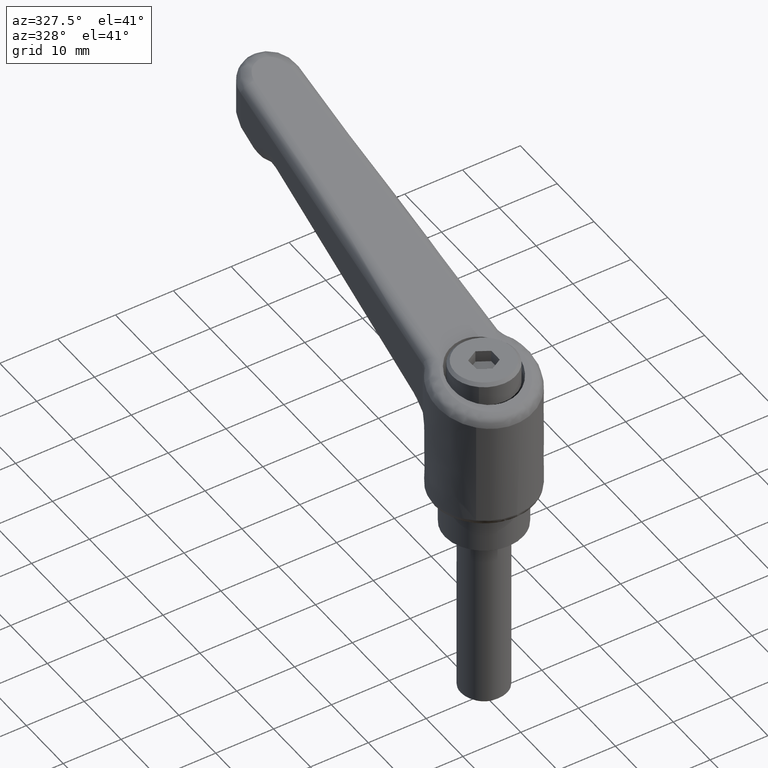
[diagram: clean part render]
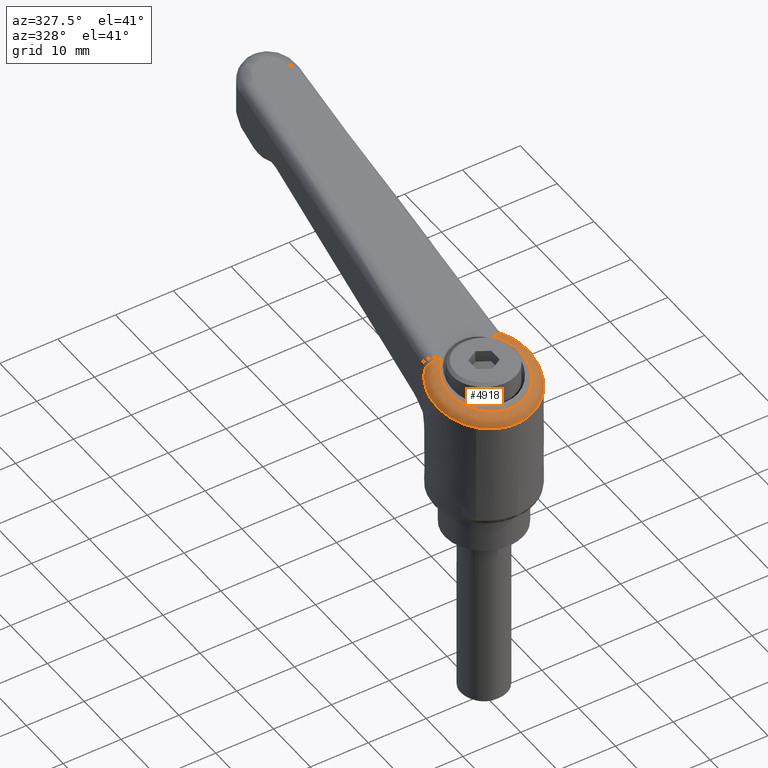
[diagram: same view with one face highlighted and labeled with its STEP entity id]
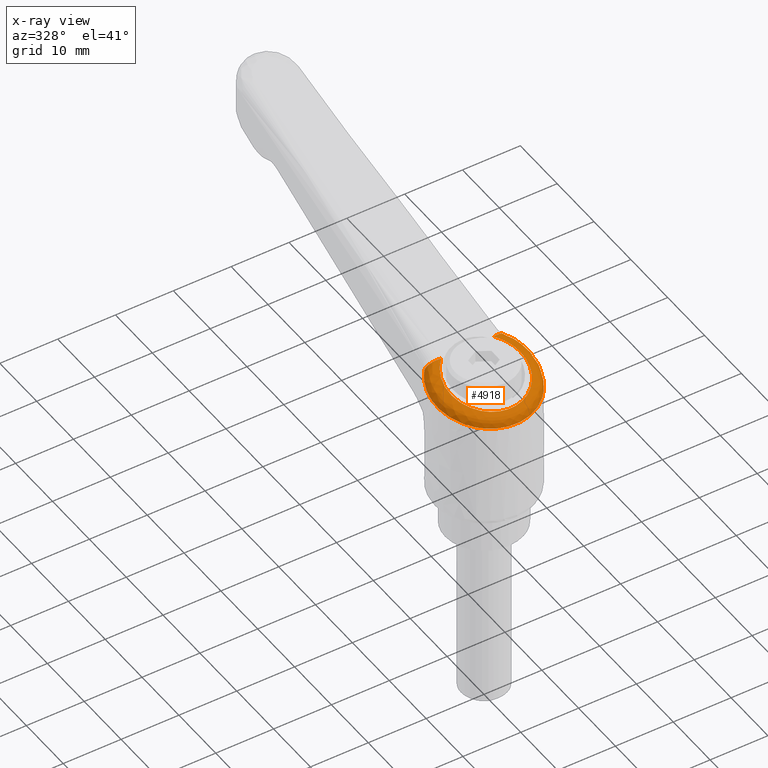
[diagram: x-ray of the same camera — body ghosted, the highlighted face saturated]
A machine part, auxiliary view. The second image highlights one B-rep face of the part: STEP entity #4918.
The next image is the same camera in x-ray: the body ghosted, the highlighted face saturated — about 0% of this face is hidden behind the body in this view.
In plain terms, the highlighted face is a freeform B-spline surface patch.
Its self-contained STEP definition (entity closure, byte-faithful):
#2028=CARTESIAN_POINT('',(-6.708743602364807,5.617406810773925,25.476228958721020));
#2029=VERTEX_POINT('',#2028);
#2030=CARTESIAN_POINT('',(5.378522906579990,6.901738284185690,27.945424589920599));
#2031=VERTEX_POINT('',#2030);
#2032=CARTESIAN_POINT('',(-6.708743602364807,5.617406810773926,25.476228958721020));
#2033=CARTESIAN_POINT('',(-6.576226125331398,5.775669476486011,25.503299725736429));
#2034=CARTESIAN_POINT('',(-6.436393221341032,5.927507258559474,25.531864893499829));
#2035=CARTESIAN_POINT('',(-0.977537447306346,11.855014517118940,26.647003938257686));
#2036=CARTESIAN_POINT('',(5.378522906579985,6.901738284185689,27.945424589920599));
#2044=(BOUNDED_CURVE()B_SPLINE_CURVE(2,(#2032,#2033,#2034,#2035,#2036),.UNSPECIFIED.,.F.,.U.)B_SPLINE_CURVE_WITH_KNOTS((3,2,3),(0.655164718706690,0.666666666666667,1.0),.UNSPECIFIED.)CURVE()GEOMETRIC_REPRESENTATION_ITEM()RATIONAL_B_SPLINE_CURVE((0.982382114092281,0.990876233793834,1.0,0.735587796724693,1.0))REPRESENTATION_ITEM(''));
#2045=EDGE_CURVE('',#2029,#2031,#2044,.T.);
#2071=CARTESIAN_POINT('',(5.378522906579990,-6.901738284185690,27.945424589920599));
#2072=VERTEX_POINT('',#2071);
#2078=CARTESIAN_POINT('',(-6.354468670888410,-6.015249613301948,25.548607935730661));
#2079=VERTEX_POINT('',#2078);
#2080=CARTESIAN_POINT('',(5.378522906579990,-6.901738284185690,27.945424589920599));
#2081=CARTESIAN_POINT('',(-0.890588192643558,-11.787254336989223,26.664769723286891));
#2082=CARTESIAN_POINT('',(-6.354468670888410,-6.015249613301948,25.548607935730665));
#2090=(BOUNDED_CURVE()B_SPLINE_CURVE(2,(#2080,#2081,#2082),.UNSPECIFIED.,.F.,.U.)B_SPLINE_CURVE_WITH_KNOTS((3,3),(0.0,0.329966926407927),.UNSPECIFIED.)CURVE()GEOMETRIC_REPRESENTATION_ITEM()RATIONAL_B_SPLINE_CURVE((1.0,0.738258153941497,0.994713222620560))REPRESENTATION_ITEM(''));
#2091=EDGE_CURVE('',#2072,#2079,#2090,.T.);
#2183=CARTESIAN_POINT('',(-6.354468670888410,-6.015249613301948,25.548607935730665));
#2184=CARTESIAN_POINT('',(-6.395732246608587,-5.971659063522899,25.540178553672135));
#2185=CARTESIAN_POINT('',(-6.436393919796870,-5.927506520684485,25.531872128355801));
#2186=CARTESIAN_POINT('',(-11.642315945486645,-0.274647766240932,24.468398859343647));
#2187=CARTESIAN_POINT('',(-6.708743602364807,5.617406810773925,25.476228958721023));
#2195=(BOUNDED_CURVE()B_SPLINE_CURVE(2,(#2183,#2184,#2185,#2186,#2187),.UNSPECIFIED.,.F.,.U.)B_SPLINE_CURVE_WITH_KNOTS((3,2,3),(0.329966926407927,0.333333333333333,0.655164718706690),.UNSPECIFIED.)CURVE()GEOMETRIC_REPRESENTATION_ITEM()RATIONAL_B_SPLINE_CURVE((0.994713222620560,0.997329642783196,1.0,0.744711562930859,0.982382114092282))REPRESENTATION_ITEM(''));
#2196=EDGE_CURVE('',#2079,#2029,#2195,.T.);
#4233=CARTESIAN_POINT('',(5.355297838498480,6.890936063726871,28.249615104373351));
#4234=VERTEX_POINT('',#4233);
#4253=CARTESIAN_POINT('',(5.355297838498480,6.890936063726871,28.249615104373351));
#4254=CARTESIAN_POINT('',(5.381023914875337,6.890188024420114,28.150572837546580));
#4255=CARTESIAN_POINT('',(5.388920763843506,6.893872938308080,28.046919103362910));
#4256=CARTESIAN_POINT('',(5.378522906579990,6.901738284185690,27.945424589920599));
#4257=B_SPLINE_CURVE_WITH_KNOTS('',3,(#4253,#4254,#4255,#4256),.UNSPECIFIED.,.F.,.U.,(4,4),(7.997706E-009,0.306972434702136),.UNSPECIFIED.);
#4258=EDGE_CURVE('',#4234,#2031,#4257,.T.);
#4325=CARTESIAN_POINT('',(4.498035217750171,4.523532370376100,30.106748746074850));
#4326=VERTEX_POINT('',#4325);
#4327=CARTESIAN_POINT('',(4.498035217750165,4.523532370376080,30.106748746074850));
#4328=CARTESIAN_POINT('',(4.502336605998392,4.559375255711268,30.107887789617841));
#4329=CARTESIAN_POINT('',(4.506895413930955,4.595831219399788,30.108489158110210));
#4330=CARTESIAN_POINT('',(4.516366121340139,4.668125969261170,30.108530391670261));
#4331=CARTESIAN_POINT('',(4.521296476610242,4.704196462623959,30.107977683193120));
#4332=CARTESIAN_POINT('',(4.536678109204940,4.812172678299531,30.104552915216360));
#4333=CARTESIAN_POINT('',(4.547719352967699,4.883843438283479,30.099916795063319));
#4334=CARTESIAN_POINT('',(4.571417191606757,5.026527291993236,30.085635485495271));
#4335=CARTESIAN_POINT('',(4.584073484065975,5.097540520854246,30.075991383877319));
#4336=CARTESIAN_POINT('',(4.611065407534976,5.238867366547858,30.051297153039091));
#4337=CARTESIAN_POINT('',(4.625395938986363,5.309111946103225,30.036233664220120));
#4338=CARTESIAN_POINT('',(4.670341902795421,5.515728255119994,29.983099070257779));
#4339=CARTESIAN_POINT('',(4.703077984326271,5.648994686616846,29.936997977314071));
#4340=CARTESIAN_POINT('',(4.747547194254421,5.809398593367468,29.864443850192121));
#4341=CARTESIAN_POINT('',(4.756619691924306,5.841168267247977,29.849181416192899));
#4342=CARTESIAN_POINT('',(4.775129539865528,5.904060866120195,29.817089495922868));
#4343=CARTESIAN_POINT('',(4.784589990515004,5.935255133666856,29.800216363494581));
#4344=CARTESIAN_POINT('',(4.813273497332856,6.027004535545970,29.747616639095490));
#4345=CARTESIAN_POINT('',(4.832840608515757,6.085893996791362,29.709849344574970));
#4346=CARTESIAN_POINT('',(4.892825031691097,6.255604829328281,29.588258086390550));
#4347=CARTESIAN_POINT('',(4.934547145165914,6.359634602194950,29.496157909599159));
#4348=CARTESIAN_POINT('',(5.021293523994483,6.546636485948359,29.287437905626149));
#4349=CARTESIAN_POINT('',(5.064765250096471,6.626282447180333,29.174555927308418));
#4350=CARTESIAN_POINT('',(5.129920393239101,6.724467221023867,28.992065979282650));
#4351=CARTESIAN_POINT('',(5.151630952138969,6.753621342530519,28.929025300490590));
#4352=CARTESIAN_POINT('',(5.195010504765208,6.804304708020362,28.798218551450940));
#4353=CARTESIAN_POINT('',(5.216230093705772,6.825303526279893,28.731803565107349));
#4354=CARTESIAN_POINT('',(5.278386179295799,6.875506247370998,28.529915688207272));
#4355=CARTESIAN_POINT('',(5.317883583990349,6.892139965603261,28.391693008403539));
#4356=CARTESIAN_POINT('',(5.355297838498480,6.890936063726871,28.249615104373351));
#4357=B_SPLINE_CURVE_WITH_KNOTS('',3,(#4327,#4328,#4329,#4330,#4331,#4332,#4333,#4334,#4335,#4336,#4337,#4338,#4339,#4340,#4341,#4342,#4343,#4344,#4345,#4346,#4347,#4348,#4349,#4350,#4351,#4352,#4353,#4354,#4355,#4356),.UNSPECIFIED.,.F.,.U.,(4,2,2,2,2,2,2,2,2,2,2,2,2,2,4),(0.0,0.031250000000000,0.062500000000000,0.124999999999999,0.187499999999999,0.249999999999999,0.374999999999998,0.406249999999999,0.437499999999999,0.499999999999999,0.625000000000000,0.750000000000001,0.812500000000001,0.875000000000002,1.0),.UNSPECIFIED.);
#4358=EDGE_CURVE('',#4326,#4234,#4357,.T.);
#4478=CARTESIAN_POINT('',(5.355297838498480,-6.890936063726871,28.249615104373351));
#4479=VERTEX_POINT('',#4478);
#4488=CARTESIAN_POINT('',(5.378522906579990,-6.901738284185690,27.945424589920599));
#4489=CARTESIAN_POINT('',(5.389195590789070,-6.893805372467013,28.046902554854679));
#4490=CARTESIAN_POINT('',(5.381295383872603,-6.890117507370787,28.150626193046829));
#4491=CARTESIAN_POINT('',(5.355297838498480,-6.890936063726871,28.249615104373351));
#4492=B_SPLINE_CURVE_WITH_KNOTS('',3,(#4488,#4489,#4490,#4491),.UNSPECIFIED.,.F.,.U.,(4,4),(8.492741E-009,0.307024501500945),.UNSPECIFIED.);
#4493=EDGE_CURVE('',#2072,#4479,#4492,.T.);
#4568=CARTESIAN_POINT('',(4.498035217750171,-4.523532370376100,30.106748746074850));
#4569=VERTEX_POINT('',#4568);
#4600=CARTESIAN_POINT('',(5.355297838498480,-6.890936063726871,28.249615104373351));
#4601=CARTESIAN_POINT('',(5.317883583990347,-6.892139965603259,28.391693008403529));
#4602=CARTESIAN_POINT('',(5.278386179295800,-6.875506247370998,28.529915688207279));
#4603=CARTESIAN_POINT('',(5.216230093705772,-6.825303526279895,28.731803565107349));
#4604=CARTESIAN_POINT('',(5.195010504765206,-6.804304708020362,28.798218551450930));
#4605=CARTESIAN_POINT('',(5.151630952138964,-6.753621342530515,28.929025300490579));
#4606=CARTESIAN_POINT('',(5.129920393239098,-6.724467221023867,28.992065979282639));
#4607=CARTESIAN_POINT('',(5.064765250096468,-6.626282447180334,29.174555927308411));
#4608=CARTESIAN_POINT('',(5.021293523994487,-6.546636485948352,29.287437905626138));
#4609=CARTESIAN_POINT('',(4.934547145165922,-6.359634602194949,29.496157909599159));
#4610=CARTESIAN_POINT('',(4.892825031691098,-6.255604829328282,29.588258086390550));
#4611=CARTESIAN_POINT('',(4.832840608515753,-6.085893996791364,29.709849344574970));
#4612=CARTESIAN_POINT('',(4.813273497332854,-6.027004535545969,29.747616639095479));
#4613=CARTESIAN_POINT('',(4.784589990515006,-5.935255133666860,29.800216363494581));
#4614=CARTESIAN_POINT('',(4.775129539865523,-5.904060866120197,29.817089495922868));
#4615=CARTESIAN_POINT('',(4.756619691924299,-5.841168267247980,29.849181416192909));
#4616=CARTESIAN_POINT('',(4.747547194254424,-5.809398593367471,29.864443850192139));
#4617=CARTESIAN_POINT('',(4.703077984326272,-5.648994686616849,29.936997977314071));
#4618=CARTESIAN_POINT('',(4.670341902795428,-5.515728255119993,29.983099070257779));
#4619=CARTESIAN_POINT('',(4.625395938986368,-5.309111946103225,30.036233664220109));
#4620=CARTESIAN_POINT('',(4.611065407534982,-5.238867366547863,30.051297153039091));
#4621=CARTESIAN_POINT('',(4.584073484065979,-5.097540520854249,30.075991383877330));
#4622=CARTESIAN_POINT('',(4.571417191606755,-5.026527291993239,30.085635485495271));
#4623=CARTESIAN_POINT('',(4.547719352967694,-4.883843438283479,30.099916795063329));
#4624=CARTESIAN_POINT('',(4.536678109204912,-4.812172678299531,30.104552915216360));
#4625=CARTESIAN_POINT('',(4.521296476610207,-4.704196462623951,30.107977683193109));
#4626=CARTESIAN_POINT('',(4.516366121340096,-4.668125969261161,30.108530391670229));
#4627=CARTESIAN_POINT('',(4.506895413930857,-4.595831219399783,30.108489158110171));
#4628=CARTESIAN_POINT('',(4.502336605997869,-4.559375255711337,30.107887789617699));
#4629=CARTESIAN_POINT('',(4.498035217750185,-4.523532370376079,30.106748746074850));
#4630=B_SPLINE_CURVE_WITH_KNOTS('',3,(#4600,#4601,#4602,#4603,#4604,#4605,#4606,#4607,#4608,#4609,#4610,#4611,#4612,#4613,#4614,#4615,#4616,#4617,#4618,#4619,#4620,#4621,#4622,#4623,#4624,#4625,#4626,#4627,#4628,#4629),.UNSPECIFIED.,.F.,.U.,(4,2,2,2,2,2,2,2,2,2,2,2,2,2,4),(0.0,0.124999999999998,0.187499999999998,0.249999999999999,0.374999999999999,0.499999999999999,0.562499999999999,0.593750000000000,0.625000000000000,0.750000000000000,0.812500000000000,0.875000000000000,0.937500000000000,0.968750000000000,1.0),.UNSPECIFIED.);
#4631=EDGE_CURVE('',#4479,#4569,#4630,.T.);
#4712=CARTESIAN_POINT('',(4.615397009320981,-4.366739163208289,30.137827128951720));
#4713=CARTESIAN_POINT('',(4.172201224826422,-4.887221669288450,30.020465182652053));
#4714=CARTESIAN_POINT('',(3.649242124545524,-5.339647173005287,29.881981243969975));
#4715=CARTESIAN_POINT('',(2.491446480850188,-6.067090616446056,29.575387285012667));
#4716=CARTESIAN_POINT('',(1.856802692194383,-6.341989124316179,29.407328307807834));
#4717=CARTESIAN_POINT('',(0.534034821903632,-6.688922331005712,29.057048325029928));
#4718=CARTESIAN_POINT('',(-0.153901487681824,-6.760918497544441,28.874877043064203));
#4719=CARTESIAN_POINT('',(-1.519946581018373,-6.695313880286246,28.513136890075305));
#4720=CARTESIAN_POINT('',(-2.197866865434286,-6.557730506316010,28.333617935250800));
#4721=CARTESIAN_POINT('',(-3.481457148254112,-6.085539207017189,27.993712504934269));
#4722=CARTESIAN_POINT('',(-4.086952808229494,-5.751001980357268,27.833372195714585));
#4723=CARTESIAN_POINT('',(-5.169913292510612,-4.915627196076016,27.546595212161321));
#4724=CARTESIAN_POINT('',(-5.647232121029107,-4.414907570401394,27.420197198731881));
#4725=CARTESIAN_POINT('',(-6.429843530597790,-3.293214132387529,27.212955159351772));
#4726=CARTESIAN_POINT('',(-6.735030910448714,-2.672395613252355,27.132138991557568));
#4727=CARTESIAN_POINT('',(-7.145224257404094,-1.367629788217455,27.023516366428655));
#4728=CARTESIAN_POINT('',(-7.250175131740165,-0.683861794100439,26.995724498119298));
#4729=CARTESIAN_POINT('',(-7.250175131740165,0.683861794100463,26.995724498119298));
#4730=CARTESIAN_POINT('',(-7.145224257404382,1.367629788217572,27.023516366428606));
#4731=CARTESIAN_POINT('',(-6.735030910448444,2.672395613252177,27.132138991557607));
#4732=CARTESIAN_POINT('',(-6.429843530597820,3.293214132387631,27.212955159351772));
#4733=CARTESIAN_POINT('',(-5.647232121029133,4.414907570401208,27.420197198731881));
#4734=CARTESIAN_POINT('',(-5.169913292510917,4.915627196075993,27.546595212161225));
#4735=CARTESIAN_POINT('',(-4.086952808229236,5.751001980357253,27.833372195714670));
#4736=CARTESIAN_POINT('',(-3.481457148254257,6.085539207017200,27.993712504934244));
#4737=CARTESIAN_POINT('',(-2.197866865434138,6.557730506315997,28.333617935250818));
#4738=CARTESIAN_POINT('',(-1.519946581018434,6.695313880285937,28.513136890075270));
#4739=CARTESIAN_POINT('',(-0.153901487681815,6.760918497544742,28.874877043064192));
#4740=CARTESIAN_POINT('',(0.534034821903669,6.688922331005873,29.057048325029914));
#4741=CARTESIAN_POINT('',(1.856802692194275,6.341989124316030,29.407328307807813));
#4742=CARTESIAN_POINT('',(2.491446480850061,6.067090616446347,29.575387285012628));
#4743=CARTESIAN_POINT('',(3.649242124545679,5.339647173004976,29.881981243970017));
#4744=CARTESIAN_POINT('',(4.172201224826996,4.887221669289335,30.020465182652217));
#4745=CARTESIAN_POINT('',(4.615397009320973,4.366739163208297,30.137827128951720));
#4746=CARTESIAN_POINT('',(4.620985446116952,-4.371833100179671,30.139306993702437));
#4747=CARTESIAN_POINT('',(4.177241626602439,-4.892875750448942,30.021799923151093));
#4748=CARTESIAN_POINT('',(3.653660359323529,-5.345746509923333,29.883151229450206));
#4749=CARTESIAN_POINT('',(2.494550842075511,-6.073846996462317,29.576209345799711));
#4750=CARTESIAN_POINT('',(1.859213004116834,-6.348951784802699,29.407966578541224));
#4751=CARTESIAN_POINT('',(0.535060535106694,-6.696072600422355,29.057319942455145));
#4752=CARTESIAN_POINT('',(-0.153565663870109,-6.768044576306924,28.874965972015108));
#4753=CARTESIAN_POINT('',(-1.520931732569317,-6.702193592521743,28.512876013714394));
#4754=CARTESIAN_POINT('',(-2.199479721550182,-6.564384040444304,28.333190837477115));
#4755=CARTESIAN_POINT('',(-3.484226251985007,-6.091577450315838,27.992979223132561));
#4756=CARTESIAN_POINT('',(-4.090245892607753,-5.756649522557503,27.832500159460018));
#4757=CARTESIAN_POINT('',(-5.174126719550726,-4.920368786121867,27.545479461481090));
#4758=CARTESIAN_POINT('',(-5.651837518585448,-4.419134657790733,27.418977650984331));
#4759=CARTESIAN_POINT('',(-6.435086084821607,-3.296327316462404,27.211566887195744));
#4760=CARTESIAN_POINT('',(-6.740515327475833,-2.674911923350382,27.130686672110631));
#4761=CARTESIAN_POINT('',(-7.151033997904977,-1.368907672269812,27.021977898608021));
#4762=CARTESIAN_POINT('',(-7.256066568350177,-0.684501724202946,26.994164396486475));
#4763=CARTESIAN_POINT('',(-7.256066568350177,0.684501724202970,26.994164396486475));
#4764=CARTESIAN_POINT('',(-7.151033997905268,1.368907672269931,27.021977898607972));
#4765=CARTESIAN_POINT('',(-6.740515327475565,2.674911923350205,27.130686672110699));
#4766=CARTESIAN_POINT('',(-6.435086084821638,3.296327316462508,27.211566887195733));
#4767=CARTESIAN_POINT('',(-5.651837518585476,4.419134657790543,27.418977650984331));
#4768=CARTESIAN_POINT('',(-5.174126719551034,4.920368786121848,27.545479461481015));
#4769=CARTESIAN_POINT('',(-4.090245892607490,5.756649522557482,27.832500159460068));
#4770=CARTESIAN_POINT('',(-3.484226251985146,6.091577450315840,27.992979223132522));
#4771=CARTESIAN_POINT('',(-2.199479721550036,6.564384040444303,28.333190837477165));
#4772=CARTESIAN_POINT('',(-1.520931732569379,6.702193592521438,28.512876013714383));
#4773=CARTESIAN_POINT('',(-0.153565663870100,6.768044576307227,28.874965972015097));
#4774=CARTESIAN_POINT('',(0.535060535106731,6.696072600422518,29.057319942455141));
#4775=CARTESIAN_POINT('',(1.859213004116727,6.348951784802554,29.407966578541203));
#4776=CARTESIAN_POINT('',(2.494550842075384,6.073846996462610,29.576209345799665));
#4777=CARTESIAN_POINT('',(3.653660359323681,5.345746509923015,29.883151229450224));
#4778=CARTESIAN_POINT('',(4.177241626603008,4.892875750449825,30.021799923151228));
#4779=CARTESIAN_POINT('',(4.620985446116944,4.371833100179679,30.139306993702437));
#4780=CARTESIAN_POINT('',(6.393730614825754,-5.987714693801401,30.608744724321422));
#4781=CARTESIAN_POINT('',(5.759483703104325,-6.667759085871599,30.440790843441352));
#4782=CARTESIAN_POINT('',(5.023972669966265,-7.237451429535908,30.246021377230132));
#4783=CARTESIAN_POINT('',(3.432993244892872,-8.116287626465935,29.824716734043161));
#4784=CARTESIAN_POINT('',(2.578049352061562,-8.425452087311960,29.598320448810870));
#4785=CARTESIAN_POINT('',(0.832794936373514,-8.771585694439699,29.136162499256333));
#4786=CARTESIAN_POINT('',(-0.057394914658386,-8.808758515052931,28.900432789840735));
#4787=CARTESIAN_POINT('',(-1.795861046266179,-8.622136327752891,28.440072434620518));
#4788=CARTESIAN_POINT('',(-2.644071097228616,-8.398462023018384,28.215459326972841));
#4789=CARTESIAN_POINT('',(-4.230509079457582,-7.718904455660549,27.795357295789351));
#4790=CARTESIAN_POINT('',(-4.968661937223152,-7.263107029107678,27.599888252344364));
#4791=CARTESIAN_POINT('',(-6.278075044047867,-6.162699633846782,27.253144722500998));
#4792=CARTESIAN_POINT('',(-6.849249978682447,-5.518185727321405,27.101892828075506));
#4793=CARTESIAN_POINT('',(-7.781389216756794,-4.095802017411188,26.855054570514898));
#4794=CARTESIAN_POINT('',(-8.142279155696665,-3.318056392226147,26.759487899719876));
#4795=CARTESIAN_POINT('',(-8.626605976437157,-1.693467762205729,26.631234111406496));
#4796=CARTESIAN_POINT('',(-8.749999999999998,-0.846773346107403,26.598558343101871));
#4797=CARTESIAN_POINT('',(-8.749999999999998,0.846773346107432,26.598558343101871));
#4798=CARTESIAN_POINT('',(-8.626605976437762,1.693467762206138,26.631234111404112));
#4799=CARTESIAN_POINT('',(-8.142279155696080,3.318056392225663,26.759487899722259));
#4800=CARTESIAN_POINT('',(-7.781389216756529,4.095802017412039,26.855054570514891));
#4801=CARTESIAN_POINT('',(-6.849249978682784,5.518185727320451,27.101892828075503));
#4802=CARTESIAN_POINT('',(-6.278075044047898,6.162699633846455,27.253144722500991));
#4803=CARTESIAN_POINT('',(-4.968661937223179,7.263107029107959,27.599888252344371));
#4804=CARTESIAN_POINT('',(-4.230509079457582,7.718904455659328,27.795357295789351));
#4805=CARTESIAN_POINT('',(-2.644071097228614,8.398462023019615,28.215459326972844));
#4806=CARTESIAN_POINT('',(-1.795861046266251,8.622136327752276,28.440072434620514));
#4807=CARTESIAN_POINT('',(-0.057394914658384,8.808758515053546,28.900432789840728));
#4808=CARTESIAN_POINT('',(0.832794936373282,8.771585694438326,29.136162499254901));
#4809=CARTESIAN_POINT('',(2.578049352061701,8.425452087313351,29.598320448812284));
#4810=CARTESIAN_POINT('',(3.432993244892894,8.116287626467448,29.824716734043172));
#4811=CARTESIAN_POINT('',(5.023972669966288,7.237451429534374,30.246021377230143));
#4812=CARTESIAN_POINT('',(5.759483703104968,6.667759085873686,30.440790843442493));
#4813=CARTESIAN_POINT('',(6.393730614825744,5.987714693801413,30.608744724321422));
#4814=CARTESIAN_POINT('',(6.661948953758125,-5.672824503049836,28.199826737795451));
#4815=CARTESIAN_POINT('',(6.086204128602095,-6.348959524888118,28.082254392362117));
#4816=CARTESIAN_POINT('',(5.406875097770530,-6.936634708215586,27.943531192657378));
#4817=CARTESIAN_POINT('',(3.902935999869372,-7.881515569594545,27.636426418145348));
#4818=CARTESIAN_POINT('',(3.078570615998709,-8.238550509994076,27.468095977795699));
#4819=CARTESIAN_POINT('',(1.360414920166438,-8.689107145576815,27.117270492424513));
#4820=CARTESIAN_POINT('',(0.466867088752125,-8.782564659462995,26.934825371017595));
#4821=CARTESIAN_POINT('',(-1.307442659173485,-8.697241105515648,26.572557909428376));
#4822=CARTESIAN_POINT('',(-2.187953355171707,-8.518470588873511,26.392786396076424));
#4823=CARTESIAN_POINT('',(-3.855129982158921,-7.905027340152757,26.052413932986443));
#4824=CARTESIAN_POINT('',(-4.641558345154255,-7.470439805652826,25.891860366972274));
#4825=CARTESIAN_POINT('',(-6.048133118389566,-6.385266163958209,25.604708009194106));
#4826=CARTESIAN_POINT('',(-6.668077651213308,-5.734833129487654,25.478149047227923));
#4827=CARTESIAN_POINT('',(-7.684546763770618,-4.277769785332748,25.270645266799448));
#4828=CARTESIAN_POINT('',(-8.080924553561204,-3.471346935590865,25.189729190345741));
#4829=CARTESIAN_POINT('',(-8.613689796878665,-1.776496763196630,25.080972338573854));
#4830=CARTESIAN_POINT('',(-8.750000000000000,-0.888312086534149,25.053146621451294));
#4831=CARTESIAN_POINT('',(-8.749999999999998,0.888312086534180,25.053146621451294));
#4832=CARTESIAN_POINT('',(-8.613689796878580,1.776496763196859,25.080972338573844));
#4833=CARTESIAN_POINT('',(-8.080924553561307,3.471346935590558,25.189729190345730));
#4834=CARTESIAN_POINT('',(-7.684546763770269,4.277769785333235,25.270645266799438));
#4835=CARTESIAN_POINT('',(-6.668077651213730,5.734833129487060,25.478149047227912));
#4836=CARTESIAN_POINT('',(-6.048133118389830,6.385266163958002,25.604708009194106));
#4837=CARTESIAN_POINT('',(-4.641558345154051,7.470439805652984,25.891860366972267));
#4838=CARTESIAN_POINT('',(-3.855129982159118,7.905027340152689,26.052413932986443));
#4839=CARTESIAN_POINT('',(-2.187953355171505,8.518470588873583,26.392786396076445));
#4840=CARTESIAN_POINT('',(-1.307442659173548,8.697241105515648,26.572557909428376));
#4841=CARTESIAN_POINT('',(0.466867088752119,8.782564659462992,26.934825371017585));
#4842=CARTESIAN_POINT('',(1.360414920166257,8.689107145576863,27.117270492424648));
#4843=CARTESIAN_POINT('',(3.078570615998799,8.238550509994047,27.468095977795535));
#4844=CARTESIAN_POINT('',(3.902935999869254,7.881515569594617,27.636426418145358));
#4845=CARTESIAN_POINT('',(5.406875097770686,6.936634708215489,27.943531192657371));
#4846=CARTESIAN_POINT('',(6.086204128601867,6.348959524888366,28.082254392363453));
#4847=CARTESIAN_POINT('',(6.661948953758115,5.672824503049847,28.199826737795451));
#4848=CARTESIAN_POINT('',(6.662792540874126,-5.671834125923018,28.192250327528296));
#4849=CARTESIAN_POINT('',(6.087242531477913,-6.347946296589234,28.074758347296040));
#4850=CARTESIAN_POINT('',(5.408106825284376,-6.935667035499580,27.936124500234499));
#4851=CARTESIAN_POINT('',(3.904486981698617,-7.880740736510372,27.629204265061521));
#4852=CARTESIAN_POINT('',(3.080245029763949,-8.237925260686289,27.460969652833455));
#4853=CARTESIAN_POINT('',(1.362228409530705,-8.688823657506349,27.110331333002087));
#4854=CARTESIAN_POINT('',(0.468693563297586,-8.782473402781841,26.927977398260651));
#4855=CARTESIAN_POINT('',(-1.305696553301055,-8.697509606655176,26.565881506235019));
#4856=CARTESIAN_POINT('',(-2.186302503559056,-8.518904942366497,26.386189497359592));
#4857=CARTESIAN_POINT('',(-3.853740342574464,-7.905716360212003,26.045961620889557));
#4858=CARTESIAN_POINT('',(-4.640334901001071,-7.471215278864908,25.885471942080279));
#4859=CARTESIAN_POINT('',(-6.047257527974763,-6.386113669778929,25.598430966060498));
#4860=CARTESIAN_POINT('',(-6.667382448819600,-5.735664458392469,25.471918346441644));
#4861=CARTESIAN_POINT('',(-7.684170526511326,-4.278476738246184,25.264489765821835));
#4862=CARTESIAN_POINT('',(-8.080685057335177,-3.471945301570670,25.183601674664938));
#4863=CARTESIAN_POINT('',(-8.613639059705355,-1.776822916668979,25.074882619870387));
#4864=CARTESIAN_POINT('',(-8.749999999999998,-0.888475519300745,25.047066251401439));
#4865=CARTESIAN_POINT('',(-8.749999999999996,0.888475519300776,25.047066251401439));
#4866=CARTESIAN_POINT('',(-8.613639059705275,1.776822916669209,25.074882619870404));
#4867=CARTESIAN_POINT('',(-8.080685057335280,3.471945301570362,25.183601674664917));
#4868=CARTESIAN_POINT('',(-7.684170526510977,4.278476738246669,25.264489765821835));
#4869=CARTESIAN_POINT('',(-6.667382448820024,5.735664458391875,25.471918346441637));
#4870=CARTESIAN_POINT('',(-6.047257527975026,6.386113669778719,25.598430966060477));
#4871=CARTESIAN_POINT('',(-4.640334901000871,7.471215278865072,25.885471942080297));
#4872=CARTESIAN_POINT('',(-3.853740342574665,7.905716360211947,26.045961620889575));
#4873=CARTESIAN_POINT('',(-2.186302503558851,8.518904942366559,26.386189497359577));
#4874=CARTESIAN_POINT('',(-1.305696553301117,8.697509606655181,26.565881506235019));
#4875=CARTESIAN_POINT('',(0.468693563297580,8.782473402781843,26.927977398260655));
#4876=CARTESIAN_POINT('',(1.362228409530525,8.688823657506399,27.110331333002218));
#4877=CARTESIAN_POINT('',(3.080245029764039,8.237925260686263,27.460969652833306));
#4878=CARTESIAN_POINT('',(3.904486981698498,7.880740736510438,27.629204265061528));
#4879=CARTESIAN_POINT('',(5.408106825284534,6.935667035499488,27.936124500234506));
#4880=CARTESIAN_POINT('',(6.087242531477688,6.347946296589484,28.074758347297408));
#4881=CARTESIAN_POINT('',(6.662792540874116,5.671834125923031,28.192250327528296));
#4889=(BOUNDED_SURFACE()B_SPLINE_SURFACE(3,2,((#4712,#4746,#4780,#4814,#4848),(#4713,#4747,#4781,#4815,#4849),(#4714,#4748,#4782,#4816,#4850),(#4715,#4749,#4783,#4817,#4851),(#4716,#4750,#4784,#4818,#4852),(#4717,#4751,#4785,#4819,#4853),(#4718,#4752,#4786,#4820,#4854),(#4719,#4753,#4787,#4821,#4855),(#4720,#4754,#4788,#4822,#4856),(#4721,#4755,#4789,#4823,#4857),(#4722,#4756,#4790,#4824,#4858),(#4723,#4757,#4791,#4825,#4859),(#4724,#4758,#4792,#4826,#4860),(#4725,#4759,#4793,#4827,#4861),(#4726,#4760,#4794,#4828,#4862),(#4727,#4761,#4795,#4829,#4863),(#4728,#4762,#4796,#4830,#4864),(#4729,#4763,#4797,#4831,#4865),(#4730,#4764,#4798,#4832,#4866),(#4731,#4765,#4799,#4833,#4867),(#4732,#4766,#4800,#4834,#4868),(#4733,#4767,#4801,#4835,#4869),(#4734,#4768,#4802,#4836,#4870),(#4735,#4769,#4803,#4837,#4871),(#4736,#4770,#4804,#4838,#4872),(#4737,#4771,#4805,#4839,#4873),(#4738,#4772,#4806,#4840,#4874),(#4739,#4773,#4807,#4841,#4875),(#4740,#4774,#4808,#4842,#4876),(#4741,#4775,#4809,#4843,#4877),(#4742,#4776,#4810,#4844,#4878),(#4743,#4777,#4811,#4845,#4879),(#4744,#4778,#4812,#4846,#4880),(#4745,#4779,#4813,#4847,#4881)),.UNSPECIFIED.,.F.,.F.,.U.)B_SPLINE_SURFACE_WITH_KNOTS((4,2,2,2,2,2,2,2,2,2,2,2,2,2,2,2,4),(3,1,1,3),(0.0,2.719287153332939,5.438574306665882,8.157861459998825,10.877148613331761,13.596435766664699,16.315722919997640,19.035010073330579,21.754297226663521,24.473584379996449,27.192871533329399,29.912158686662341,32.631445839995280,35.350732993328222,38.070020146661157,40.789307299994100,43.508594453327042),(0.0,0.018960204958328,3.802137396981404,3.821053503013286),.UNSPECIFIED.)GEOMETRIC_REPRESENTATION_ITEM()RATIONAL_B_SPLINE_SURFACE(((1.003663776759839,1.001831888379920,0.634478722541464,1.001827627650086,1.003655255300171),(1.003597250653285,1.001798625326642,0.641115782888204,1.001794441962266,1.003588883924533),(1.003519792517883,1.001759896258941,0.648843490785715,1.001755802973249,1.003511605946499),(1.003351997465285,1.001675998732643,0.665583774377504,1.001672100581489,1.003344201162978),(1.003261687952833,1.001630843976417,0.674593616003208,1.001627050849247,1.003254101698495),(1.003077465608008,1.001538732804004,0.692972788979822,1.001535153915227,1.003070307830454),(1.002983579119562,1.001491789559781,0.702339492095908,1.001488319854774,1.002976639709549),(1.002800759532535,1.001400379766268,0.720578717183778,1.001397122668339,1.002794245336677),(1.002711839111860,1.001355919555930,0.729449974328503,1.001352765866564,1.002705531733127),(1.002546190088804,1.001273095044402,0.745976156595144,1.001270133993883,1.002540267987767),(1.002469466183059,1.001234733091529,0.753630613151229,1.001231861265834,1.002463722531669),(1.002333891145189,1.001166945572595,0.767156426616950,1.001164231411694,1.002328462823387),(1.002275041002569,1.001137520501285,0.773027684807386,1.001134874779204,1.002269749558407),(1.002179266535352,1.001089633267676,0.782582744490318,1.001087098924960,1.002174197849920),(1.002142341940454,1.001071170970227,0.786266572949705,1.001068679568371,1.002137359136741),(1.002092841037689,1.001046420518845,0.791205092515674,1.001043986683261,1.002087973366523),(1.002080264372390,1.001040132186195,0.792459819282005,1.001037712976441,1.002075425952882),(1.002080264372390,1.001040132186195,0.792459819282005,1.001037712976441,1.002075425952882),(1.002092841037690,1.001046420518845,0.791205092515560,1.001043986683262,1.002087973366524),(1.002142341940453,1.001071170970226,0.786266572949819,1.001068679568370,1.002137359136740),(1.002179266535352,1.001089633267676,0.782582744490318,1.001087098924960,1.002174197849920),(1.002275041002569,1.001137520501285,0.773027684807385,1.001134874779204,1.002269749558407),(1.002333891145188,1.001166945572594,0.767156426617105,1.001164231411693,1.002328462823386),(1.002469466183060,1.001234733091530,0.753630613151074,1.001231861265835,1.002463722531670),(1.002546190088803,1.001273095044402,0.745976156595182,1.001270133993883,1.002540267987766),(1.002711839111861,1.001355919555930,0.729449974328463,1.001352765866564,1.002705531733128),(1.002800759532536,1.001400379766268,0.720578717183739,1.001397122668339,1.002794245336677),(1.002983579119562,1.001491789559781,0.702339492095947,1.001488319854774,1.002976639709548),(1.003077465608006,1.001538732804003,0.692972788980115,1.001535153915225,1.003070307830451),(1.003261687952836,1.001630843976418,0.674593616002916,1.001627050849249,1.003254101698498),(1.003351997465287,1.001675998732644,0.665583774377308,1.001672100581490,1.003344201162980),(1.003519792517881,1.001759896258941,0.648843490785909,1.001755802973248,1.003511605946497),(1.003597250653286,1.001798625326643,0.641115782888059,1.001794441962267,1.003588883924534),(1.003663776759839,1.001831888379920,0.634478722541464,1.001827627650086,1.003655255300171)))REPRESENTATION_ITEM('')SURFACE());
#4890=ORIENTED_EDGE('',*,*,#4358,.T.);
#4891=ORIENTED_EDGE('',*,*,#4258,.T.);
#4892=ORIENTED_EDGE('',*,*,#2045,.F.);
#4893=ORIENTED_EDGE('',*,*,#2196,.F.);
#4894=ORIENTED_EDGE('',*,*,#2091,.F.);
#4895=ORIENTED_EDGE('',*,*,#4493,.T.);
#4896=ORIENTED_EDGE('',*,*,#4631,.T.);
#4897=CARTESIAN_POINT('',(4.498035217750171,4.523532370376100,30.106748746074850));
#4898=CARTESIAN_POINT('',(1.391389042807188,7.964275816364706,29.284082885271129));
#4899=CARTESIAN_POINT('',(-2.935290608949344,6.300001467443412,28.138341967350460));
#4900=CARTESIAN_POINT('',(-7.261970260705871,4.635727118522119,26.992601049429794));
#4901=CARTESIAN_POINT('',(-7.261970260705871,-1.033719E-014,26.992601049429801));
#4902=CARTESIAN_POINT('',(-7.261970260705871,-4.635727118522133,26.992601049429794));
#4903=CARTESIAN_POINT('',(-2.935290608949325,-6.300001467443418,28.138341967350470));
#4904=CARTESIAN_POINT('',(1.391389042807214,-7.964275816364701,29.284082885271129));
#4905=CARTESIAN_POINT('',(4.498035217750171,-4.523532370376100,30.106748746074850));
#4913=(BOUNDED_CURVE()B_SPLINE_CURVE(2,(#4897,#4898,#4899,#4900,#4901,#4902,#4903,#4904,#4905),.UNSPECIFIED.,.F.,.U.)B_SPLINE_CURVE_WITH_KNOTS((3,2,2,2,3),(0.0,0.250000000000000,0.500000000000000,0.750000000000000,1.0),.UNSPECIFIED.)CURVE()GEOMETRIC_REPRESENTATION_ITEM()RATIONAL_B_SPLINE_CURVE((1.0,0.824321060619584,1.0,0.824321060619584,1.0,0.824321060619584,1.0,0.824321060619584,1.0))REPRESENTATION_ITEM(''));
#4914=EDGE_CURVE('',#4326,#4569,#4913,.T.);
#4915=ORIENTED_EDGE('',*,*,#4914,.F.);
#4916=EDGE_LOOP('',(#4890,#4891,#4892,#4893,#4894,#4895,#4896,#4915));
#4917=FACE_OUTER_BOUND('',#4916,.T.);
#4918=ADVANCED_FACE('',(#4917),#4889,.T.);